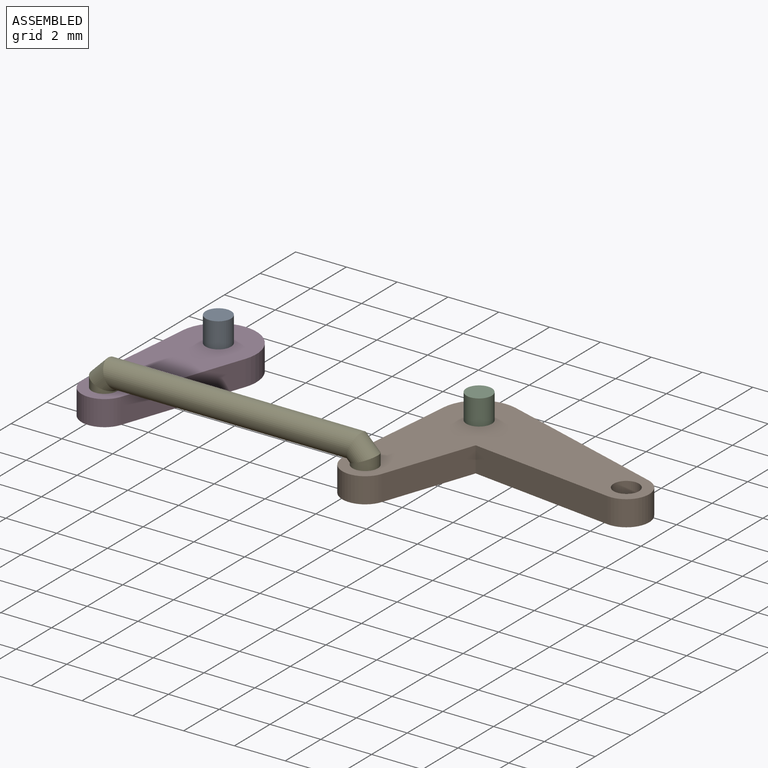
[diagram: assembled view]
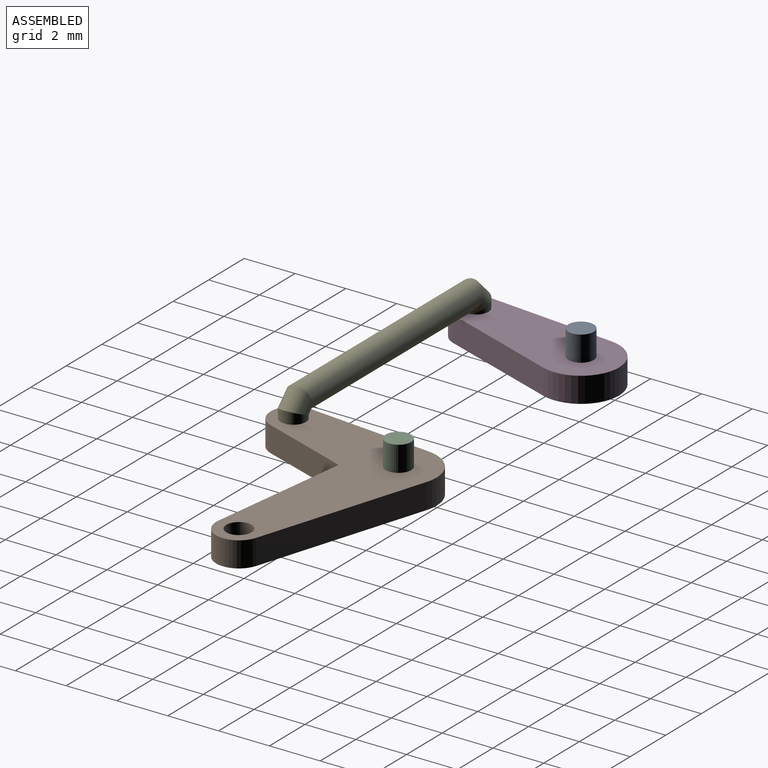
[diagram: assembled view, second angle]
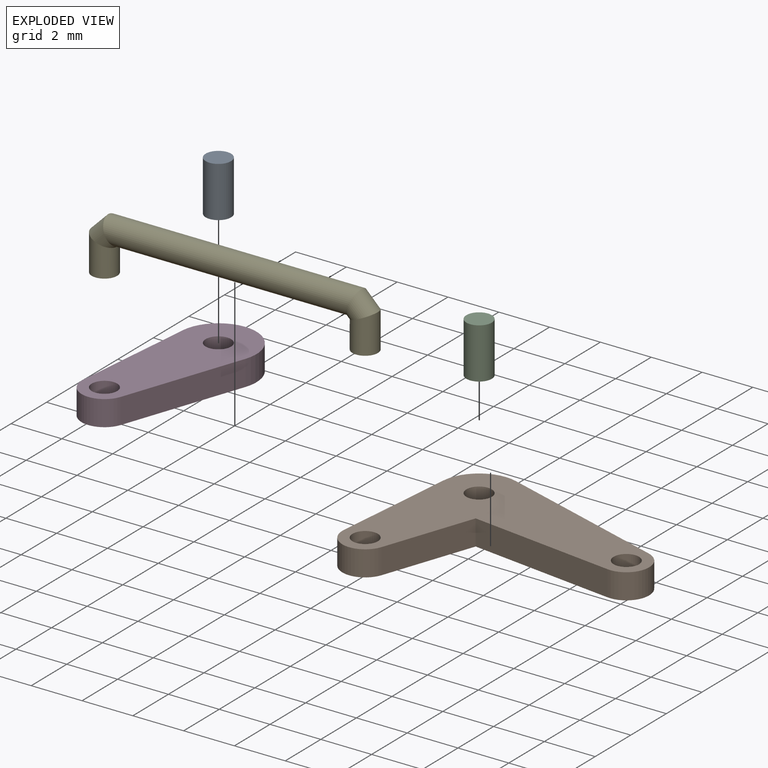
[diagram: exploded view]
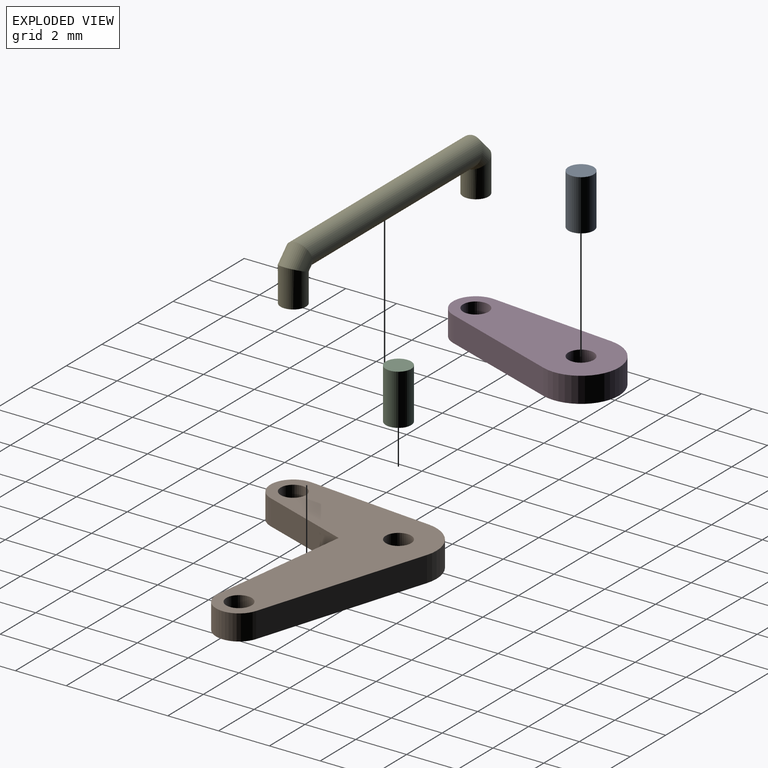
[diagram: exploded view, second angle]
ASSEMBLY  parts=5 mates=4
PART A: 3 faces, bbox 1x1x2 mm
  f0: cylinder r=0.5mm len=2mm, axis (0,0,-1), area 6.3mm2, adj f1,f2
  f1: plane 1x1mm, normal (0,0,1), area 0.8mm2, adj f0
  f2: plane 1x1mm, normal (0,0,-1), area 0.8mm2, adj f0
PART B: 12 faces, bbox 9.4x7.4x1 mm
  f0: plane 6.95x1mm, normal (0.09,1,0), area 7mm2, adj f1,f9,f10,f11
  f1: cylinder r=1.5mm len=1.68mm, axis (0,0,-1), area 2.7mm2, adj f0,f2,f10,f11
  f2: plane 4.93x1mm, normal (-0.99,-0.12,0), area 5mm2, adj f1,f3,f10,f11
  f3: cylinder r=0.9mm len=1.79mm, axis (0,0,-1), area 2.6mm2, adj f2,f4,f10,f11
  f4: plane 3.72x1mm, normal (0.99,-0.12,0), area 3.7mm2, adj f3,f5,f10,f11
  f5: plane 5.73x1mm, normal (0.09,-1,0), area 5.8mm2, adj f4,f9,f10,f11
  f6: cylinder r=0.5mm len=1mm, axis (0,0,-1), area 3.1mm2, adj f10,f11
  f7: cylinder r=0.5mm len=1mm, axis (0,0,-1), area 3.1mm2, adj f10,f11
  f8: cylinder r=0.5mm len=1mm, axis (0,0,-1), area 3.1mm2, adj f10,f11
  f9: cylinder r=0.9mm len=1.79mm, axis (0,0,-1), area 2.7mm2, adj f0,f5,f10,f11
  f10: plane 9.4x7.4mm, normal (0,0,1), area 28.8mm2, adj f0,f1,f2,f3,f4,f5,f6,f7
  f11: plane 9.4x7.4mm, normal (0,0,-1), area 28.8mm2, adj f0,f1,f2,f3,f4,f5,f6,f7
PART C: 3 faces, bbox 1x1x2 mm
  f0: cylinder r=0.5mm len=2mm, axis (0,0,-1), area 6.3mm2, adj f1,f2
  f1: plane 1x1mm, normal (0,0,1), area 0.8mm2, adj f0
  f2: plane 1x1mm, normal (0,0,-1), area 0.8mm2, adj f0
PART D: 8 faces, bbox 3x7.4x1 mm
  f0: plane 4.93x1mm, normal (0.99,-0.12,0), area 5mm2, adj f1,f4,f6,f7
  f1: cylinder r=1.5mm len=3mm, axis (0,0,-1), area 5.1mm2, adj f0,f2,f6,f7
  f2: plane 4.93x1mm, normal (-0.99,-0.12,0), area 5mm2, adj f1,f4,f6,f7
  f3: cylinder r=0.5mm len=1mm, axis (0,0,-1), area 3.1mm2, adj f6,f7
  f4: cylinder r=0.9mm len=1.79mm, axis (0,0,-1), area 2.6mm2, adj f0,f2,f6,f7
  f5: cylinder r=0.5mm len=1mm, axis (0,0,-1), area 3.1mm2, adj f6,f7
  f6: plane 7.4x3mm, normal (0,0,1), area 15.3mm2, adj f0,f1,f2,f3,f4,f5
  f7: plane 7.4x3mm, normal (0,0,-1), area 15.3mm2, adj f0,f1,f2,f3,f4,f5
PART E: 7 faces, bbox 11.3x1x2.1 mm
  f0: plane 1x1mm, normal (0,0,-1), area 0.8mm2, adj f2
  f1: plane 1x1mm, normal (0,0,-1), area 0.8mm2, adj f6
  f2: cylinder r=0.5mm len=1.46mm, axis (0,0,-1), area 3.9mm2, adj f0,f3
  f3: cylinder r=0.5mm len=1.35mm, axis (0.71,0,-0.71), area 1.6mm2, adj f2,f4
  f4: cylinder r=0.5mm len=9.97mm, axis (1,0,0), area 30mm2, adj f3,f5
  f5: cylinder r=0.5mm len=1.35mm, axis (0.71,0,0.71), area 1.6mm2, adj f4,f6
  f6: cylinder r=0.5mm len=1.46mm, axis (0,0,1), area 3.9mm2, adj f1,f5
PLACE A at identity fixed
PLACE B rot(axis=(0,0,-1),12.3deg) t=(0.02,0.22,0)mm
PLACE C at identity fixed
PLACE D rot(axis=(0,0,-1),12.3deg) t=(-0.21,-1.96,0)mm
PLACE E t=(-1.06,0.11,0)mm
MATE revolute C.f0 <-> B.f1  axis (0,0,-1) through (1.03,0,0)mm
MATE revolute E.f6 <-> D.f4  axis (0,0,-1) through (-10.3,-4.89,0)mm
MATE revolute A.f0 <-> D.f1  axis (0,0,-1) through (-9.23,0,0)mm
MATE revolute B.f3 <-> E.f2  axis (0,0,-1) through (-0.04,-4.89,0)mm
